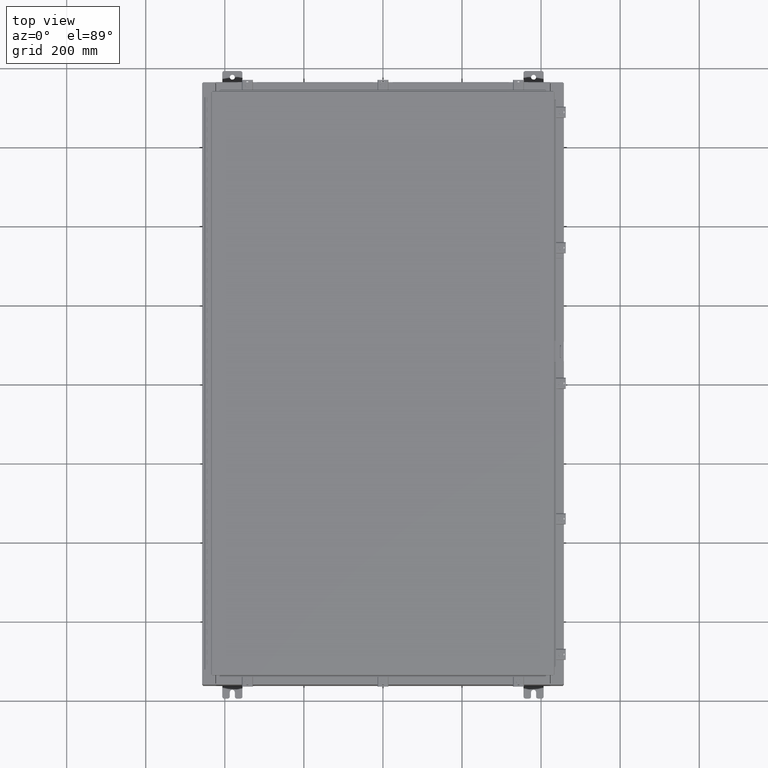
[diagram: clean part render]
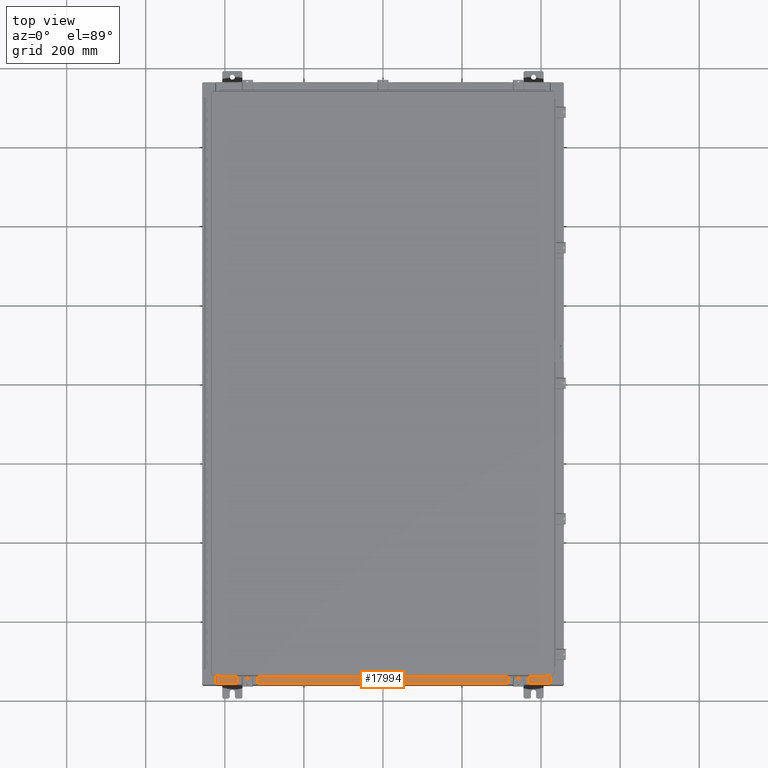
[diagram: same view with one face highlighted and labeled with its STEP entity id]
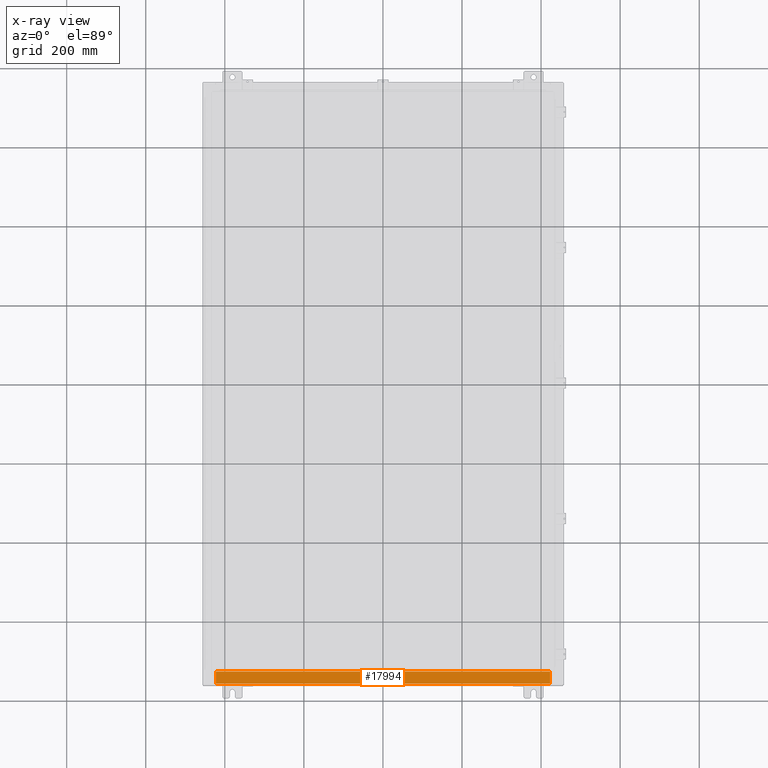
[diagram: x-ray of the same camera — body ghosted, the highlighted face saturated]
A machine part, top view. The second image highlights one B-rep face of the part: STEP entity #17994.
The next image is the same camera in x-ray: the body ghosted, the highlighted face saturated — about 0% of this face is hidden behind the body in this view.
In plain terms, the highlighted planar face has unit normal (-0, -0, 1).
Its self-contained STEP definition (entity closure, byte-faithful):
#19 = CARTESIAN_POINT ( 'NONE',  ( 16.63720000000000400, -1.300299999999999800, 4.000000000000004400 ) ) ;
#1511 = VECTOR ( 'NONE', #56806, 39.37007874015748100 ) ;
#3119 = VERTEX_POINT ( 'NONE', #54186 ) ;
#4413 = ORIENTED_EDGE ( 'NONE', *, *, #62482, .F. ) ;
#4886 = VECTOR ( 'NONE', #28204, 39.37007874015748100 ) ;
#7019 = AXIS2_PLACEMENT_3D ( 'NONE', #50069, #59861, #30681 ) ;
#8294 = CARTESIAN_POINT ( 'NONE',  ( -16.63719999999999600, -0.07469999999999973900, 4.000000000000000900 ) ) ;
#9557 = CARTESIAN_POINT ( 'NONE',  ( -2.880088825576348200E-018, -0.08769999999999972300, 4.000000000000000900 ) ) ;
#9680 = LINE ( 'NONE', #19, #22622 ) ;
#10374 = EDGE_CURVE ( 'NONE', #37902, #34990, #9680, .T. ) ;
#11433 = CARTESIAN_POINT ( 'NONE',  ( -16.63719999999999600, -0.08769999999999972300, 4.000000000000000900 ) ) ;
#13963 = CARTESIAN_POINT ( 'NONE',  ( 16.63720000000000400, -1.287299999999999900, 4.000000000000004400 ) ) ;
#15837 = PLANE ( 'NONE',  #7019 ) ;
#17476 = VERTEX_POINT ( 'NONE', #11433 ) ;
#17994 = ADVANCED_FACE ( 'NONE', ( #21215 ), #15837, .T. ) ;
#21164 = VECTOR ( 'NONE', #43548, 39.37007874015748100 ) ;
#21215 = FACE_OUTER_BOUND ( 'NONE', #38816, .T. ) ;
#22622 = VECTOR ( 'NONE', #24293, 39.37007874015748100 ) ;
#24293 = DIRECTION ( 'NONE',  ( -0.0000000000000000000, -1.000000000000000000, 3.566381192773190000E-015 ) ) ;
#27376 = LINE ( 'NONE', #8294, #1511 ) ;
#27820 = CARTESIAN_POINT ( 'NONE',  ( 16.63720000000000700, -0.08769999999999937600, 4.000000000000000900 ) ) ;
#28204 = DIRECTION ( 'NONE',  ( -1.000000000000000000, 0.0000000000000000000, 0.0000000000000000000 ) ) ;
#30681 = DIRECTION ( 'NONE',  ( 0.0000000000000000000, -1.000000000000000000, 3.566381192773190000E-015 ) ) ;
#30746 = LINE ( 'NONE', #57374, #4886 ) ;
#30988 = LINE ( 'NONE', #9557, #21164 ) ;
#34990 = VERTEX_POINT ( 'NONE', #13963 ) ;
#36375 = ORIENTED_EDGE ( 'NONE', *, *, #41115, .F. ) ;
#37902 = VERTEX_POINT ( 'NONE', #27820 ) ;
#38816 = EDGE_LOOP ( 'NONE', ( #4413, #36375, #52536, #49832 ) ) ;
#39144 = EDGE_CURVE ( 'NONE', #37902, #17476, #30988, .T. ) ;
#41115 = EDGE_CURVE ( 'NONE', #34990, #3119, #30746, .T. ) ;
#43548 = DIRECTION ( 'NONE',  ( -1.000000000000000000, 3.284023746380717400E-017, -1.171208052571274300E-031 ) ) ;
#49832 = ORIENTED_EDGE ( 'NONE', *, *, #39144, .T. ) ;
#50069 = CARTESIAN_POINT ( 'NONE',  ( 0.0000000000000000000, 1.425992975200418500E-014, 4.000000000000000900 ) ) ;
#52536 = ORIENTED_EDGE ( 'NONE', *, *, #10374, .F. ) ;
#54186 = CARTESIAN_POINT ( 'NONE',  ( -16.63719999999999600, -1.287299999999999200, 4.000000000000004400 ) ) ;
#56806 = DIRECTION ( 'NONE',  ( -0.0000000000000000000, 1.000000000000000000, -3.566381192773190000E-015 ) ) ;
#57374 = CARTESIAN_POINT ( 'NONE',  ( 16.63720000000000700, -1.287299999999999900, 4.000000000000004400 ) ) ;
#59861 = DIRECTION ( 'NONE',  ( 0.0000000000000000000, 3.566381192773190000E-015, 1.000000000000000000 ) ) ;
#62482 = EDGE_CURVE ( 'NONE', #3119, #17476, #27376, .T. ) ;